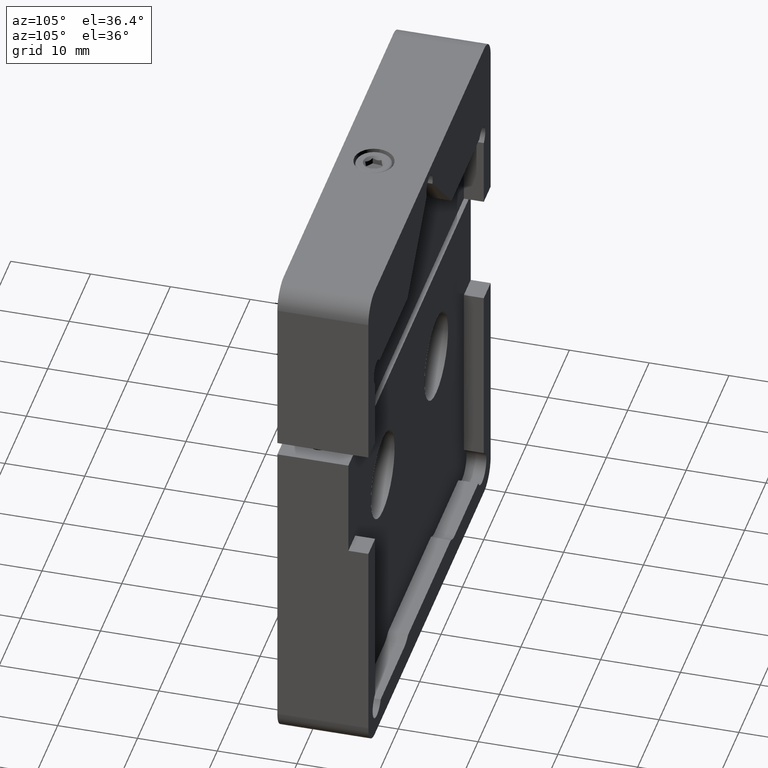
[diagram: clean part render]
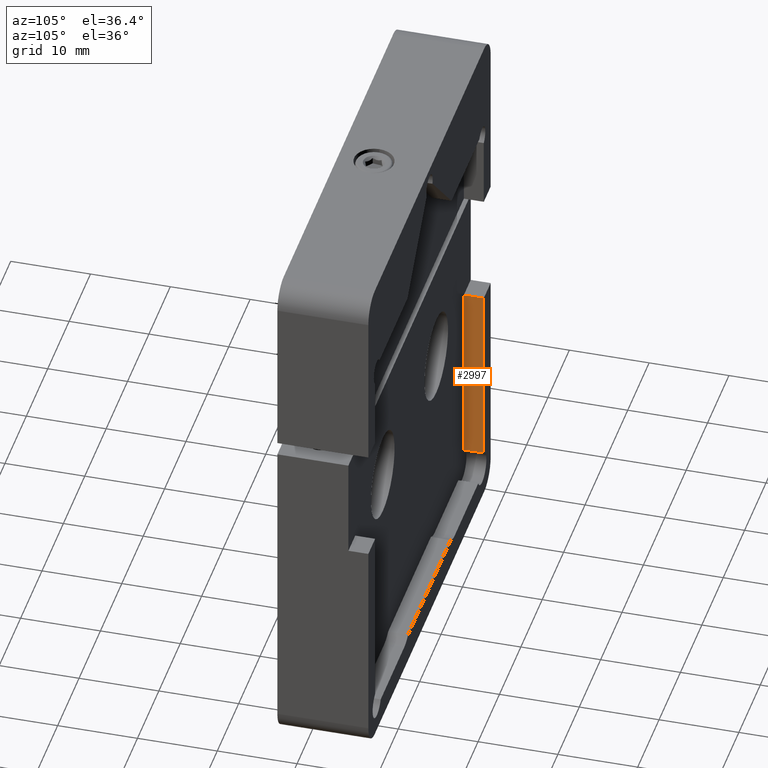
[diagram: same view with one face highlighted and labeled with its STEP entity id]
A machine part, auxiliary view. The second image highlights one B-rep face of the part: STEP entity #2997.
In plain terms, the highlighted planar face has unit normal (-1, 0, 0).
Its self-contained STEP definition (entity closure, byte-faithful):
#23 = VECTOR ( 'NONE', #3471, 1000.000000000000000 ) ;
#53 = VERTEX_POINT ( 'NONE', #632 ) ;
#75 = DIRECTION ( 'NONE',  ( -0.000000000000000000, -0.000000000000000000, 1.000000000000000000 ) ) ;
#128 = VERTEX_POINT ( 'NONE', #195 ) ;
#183 = DIRECTION ( 'NONE',  ( -0.000000000000000000, 0.000000000000000000, 1.000000000000000000 ) ) ;
#195 = CARTESIAN_POINT ( 'NONE',  ( -25.39999999999999503, 8.900000000000000355, 8.200000000000006395 ) ) ;
#324 = LINE ( 'NONE', #2556, #418 ) ;
#418 = VECTOR ( 'NONE', #884, 1000.000000000000000 ) ;
#467 = LINE ( 'NONE', #1580, #1233 ) ;
#632 = CARTESIAN_POINT ( 'NONE',  ( -25.39999999999999503, 8.899999999999998579, -15.08305363810158539 ) ) ;
#839 = ORIENTED_EDGE ( 'NONE', *, *, #1342, .T. ) ;
#884 = DIRECTION ( 'NONE',  ( -0.000000000000000000, -0.000000000000000000, 1.000000000000000000 ) ) ;
#932 = VERTEX_POINT ( 'NONE', #3077 ) ;
#1233 = VECTOR ( 'NONE', #75, 1000.000000000000000 ) ;
#1271 = PLANE ( 'NONE',  #2178 ) ;
#1342 = EDGE_CURVE ( 'NONE', #1380, #932, #467, .T. ) ;
#1350 = EDGE_CURVE ( 'NONE', #53, #128, #324, .T. ) ;
#1380 = VERTEX_POINT ( 'NONE', #1693 ) ;
#1500 = FACE_OUTER_BOUND ( 'NONE', #2170, .T. ) ;
#1565 = ORIENTED_EDGE ( 'NONE', *, *, #2109, .T. ) ;
#1580 = CARTESIAN_POINT ( 'NONE',  ( -25.39999999999999503, 11.40000000000000036, 59.20000000000000284 ) ) ;
#1636 = EDGE_CURVE ( 'NONE', #53, #1380, #2659, .T. ) ;
#1693 = CARTESIAN_POINT ( 'NONE',  ( -25.39999999999999503, 11.40000000000000036, -15.08305363810158539 ) ) ;
#1810 = LINE ( 'NONE', #2122, #1818 ) ;
#1818 = VECTOR ( 'NONE', #3442, 1000.000000000000000 ) ;
#2109 = EDGE_CURVE ( 'NONE', #932, #128, #1810, .T. ) ;
#2122 = CARTESIAN_POINT ( 'NONE',  ( -25.39999999999999503, 8.900000000000000355, 8.200000000000006395 ) ) ;
#2170 = EDGE_LOOP ( 'NONE', ( #839, #1565, #2267, #3012 ) ) ;
#2178 = AXIS2_PLACEMENT_3D ( 'NONE', #3443, #2864, #183 ) ;
#2267 = ORIENTED_EDGE ( 'NONE', *, *, #1350, .F. ) ;
#2556 = CARTESIAN_POINT ( 'NONE',  ( -25.39999999999999503, 8.900000000000000355, 59.20000000000000284 ) ) ;
#2659 = LINE ( 'NONE', #3399, #23 ) ;
#2864 = DIRECTION ( 'NONE',  ( -1.000000000000000000, 0.000000000000000000, -0.000000000000000000 ) ) ;
#2997 = ADVANCED_FACE ( 'NONE', ( #1500 ), #1271, .F. ) ;
#3012 = ORIENTED_EDGE ( 'NONE', *, *, #1636, .T. ) ;
#3077 = CARTESIAN_POINT ( 'NONE',  ( -25.39999999999999503, 11.40000000000000036, 8.200000000000008171 ) ) ;
#3399 = CARTESIAN_POINT ( 'NONE',  ( -25.39999999999999503, -53.76737588251162947, -15.08305363810158539 ) ) ;
#3442 = DIRECTION ( 'NONE',  ( 0.000000000000000000, -1.000000000000000000, 0.000000000000000000 ) ) ;
#3443 = CARTESIAN_POINT ( 'NONE',  ( -25.39999999999999503, 8.900000000000000355, 59.20000000000000284 ) ) ;
#3471 = DIRECTION ( 'NONE',  ( -0.000000000000000000, 1.000000000000000000, -0.000000000000000000 ) ) ;